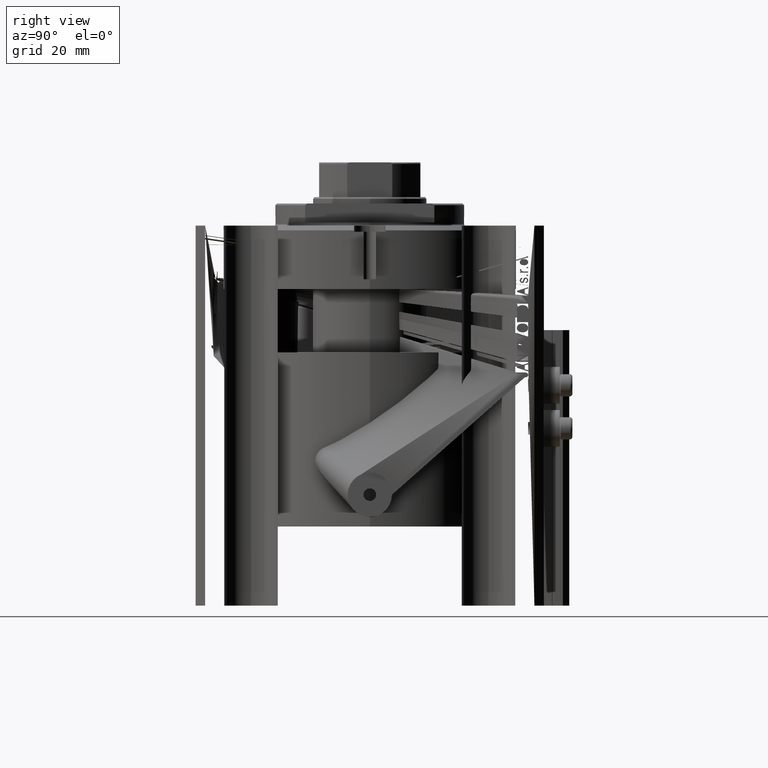
[diagram: clean part render]
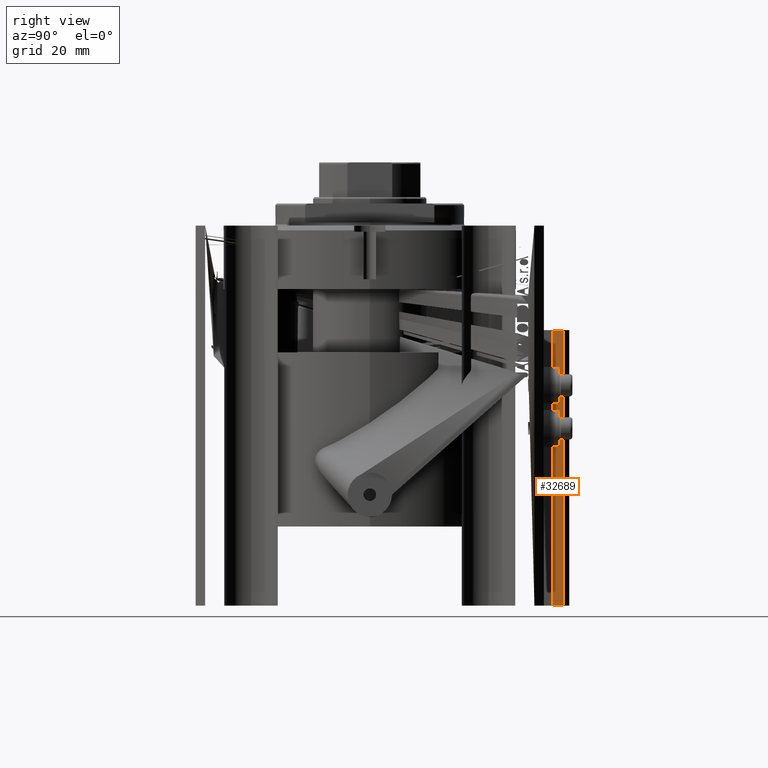
[diagram: same view with one face highlighted and labeled with its STEP entity id]
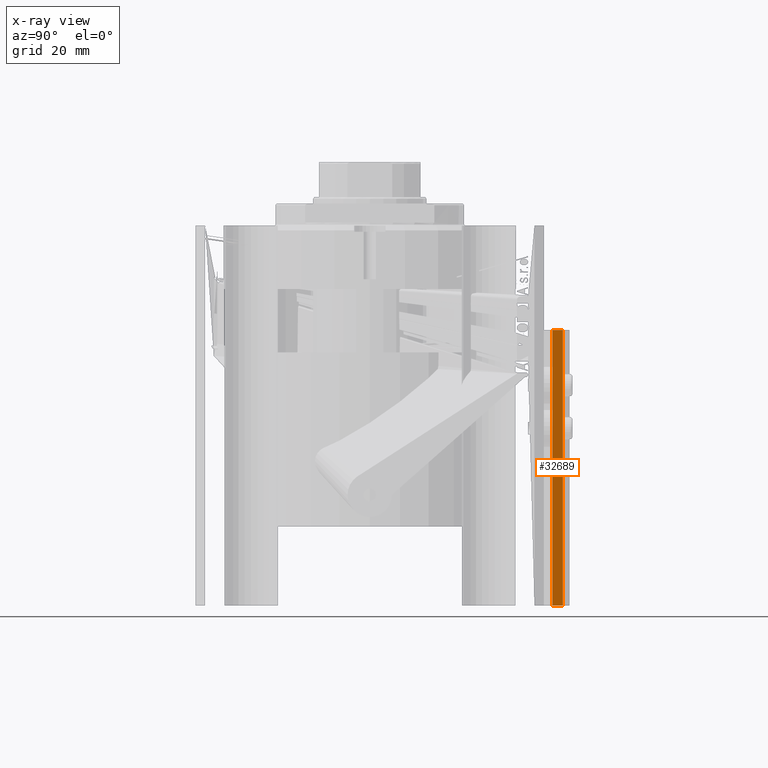
[diagram: x-ray of the same camera — body ghosted, the highlighted face saturated]
A machine part, right view. The second image highlights one B-rep face of the part: STEP entity #32689.
The next image is the same camera in x-ray: the body ghosted, the highlighted face saturated — about 0% of this face is hidden behind the body in this view.
In plain terms, the highlighted planar face has unit normal (1, 0, 0).
Its self-contained STEP definition (entity closure, byte-faithful):
#462 = CARTESIAN_POINT ( 'NONE',  ( 12.00000000000000000, 61.00000000000002842, -120.0000000000000000 ) ) ;
#5024 = ORIENTED_EDGE ( 'NONE', *, *, #13636, .T. ) ;
#5574 = AXIS2_PLACEMENT_3D ( 'NONE', #6026, #35603, #20089 ) ;
#5708 = EDGE_CURVE ( 'NONE', #27796, #30746, #46766, .T. ) ;
#6026 = CARTESIAN_POINT ( 'NONE',  ( 12.00000000000000178, 57.70000000000003126, -120.0000000000000000 ) ) ;
#6129 = CARTESIAN_POINT ( 'NONE',  ( 12.00000000000000000, 61.00000000000002842, -120.0000000000000000 ) ) ;
#7429 = EDGE_LOOP ( 'NONE', ( #42200, #46279, #5024, #40444 ) ) ;
#7736 = DIRECTION ( 'NONE',  ( -5.256737805990328981E-16, 1.000000000000000000, 0.000000000000000000 ) ) ;
#7773 = CARTESIAN_POINT ( 'NONE',  ( 11.99999999999999822, 57.70000000000003126, -33.00000000000000000 ) ) ;
#7853 = CARTESIAN_POINT ( 'NONE',  ( 12.00000000000000000, 61.00000000000002842, -33.00000000000000000 ) ) ;
#8222 = CARTESIAN_POINT ( 'NONE',  ( 12.00000000000000178, 57.70000000000003126, -33.00000000000000000 ) ) ;
#10253 = CARTESIAN_POINT ( 'NONE',  ( 11.99999999999999822, 57.70000000000003126, -120.0000000000000000 ) ) ;
#11042 = VECTOR ( 'NONE', #28612, 1000.000000000000000 ) ;
#13636 = EDGE_CURVE ( 'NONE', #27796, #20455, #15556, .T. ) ;
#15556 = LINE ( 'NONE', #26762, #36900 ) ;
#18746 = VERTEX_POINT ( 'NONE', #7853 ) ;
#19365 = DIRECTION ( 'NONE',  ( -5.256737805990328981E-16, 1.000000000000000000, 0.000000000000000000 ) ) ;
#20089 = DIRECTION ( 'NONE',  ( -5.256737805990328981E-16, 1.000000000000000000, 0.000000000000000000 ) ) ;
#20455 = VERTEX_POINT ( 'NONE', #462 ) ;
#21468 = CARTESIAN_POINT ( 'NONE',  ( 11.99999999999999822, 57.70000000000003126, -120.0000000000000000 ) ) ;
#24934 = EDGE_CURVE ( 'NONE', #30746, #18746, #26346, .T. ) ;
#26346 = LINE ( 'NONE', #8222, #37487 ) ;
#26762 = CARTESIAN_POINT ( 'NONE',  ( 12.00000000000000178, 57.70000000000003126, -120.0000000000000000 ) ) ;
#27796 = VERTEX_POINT ( 'NONE', #21468 ) ;
#28424 = PLANE ( 'NONE',  #5574 ) ;
#28612 = DIRECTION ( 'NONE',  ( 0.000000000000000000, 0.000000000000000000, 1.000000000000000000 ) ) ;
#30746 = VERTEX_POINT ( 'NONE', #7773 ) ;
#32346 = LINE ( 'NONE', #6129, #33151 ) ;
#32689 = ADVANCED_FACE ( 'NONE', ( #38231 ), #28424, .T. ) ;
#33151 = VECTOR ( 'NONE', #38814, 1000.000000000000000 ) ;
#35603 = DIRECTION ( 'NONE',  ( 1.000000000000000000, 5.256737805990328981E-16, -0.000000000000000000 ) ) ;
#36202 = EDGE_CURVE ( 'NONE', #20455, #18746, #32346, .T. ) ;
#36900 = VECTOR ( 'NONE', #19365, 1000.000000000000000 ) ;
#37487 = VECTOR ( 'NONE', #7736, 1000.000000000000000 ) ;
#38231 = FACE_OUTER_BOUND ( 'NONE', #7429, .T. ) ;
#38814 = DIRECTION ( 'NONE',  ( 0.000000000000000000, 0.000000000000000000, 1.000000000000000000 ) ) ;
#40444 = ORIENTED_EDGE ( 'NONE', *, *, #36202, .T. ) ;
#42200 = ORIENTED_EDGE ( 'NONE', *, *, #24934, .F. ) ;
#46279 = ORIENTED_EDGE ( 'NONE', *, *, #5708, .F. ) ;
#46766 = LINE ( 'NONE', #10253, #11042 ) ;